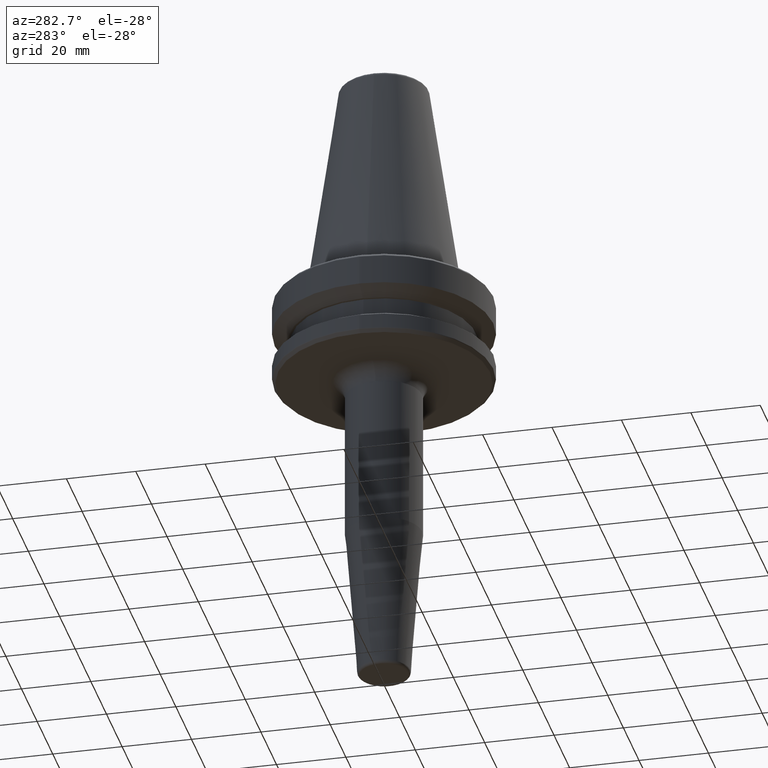
[diagram: clean part render]
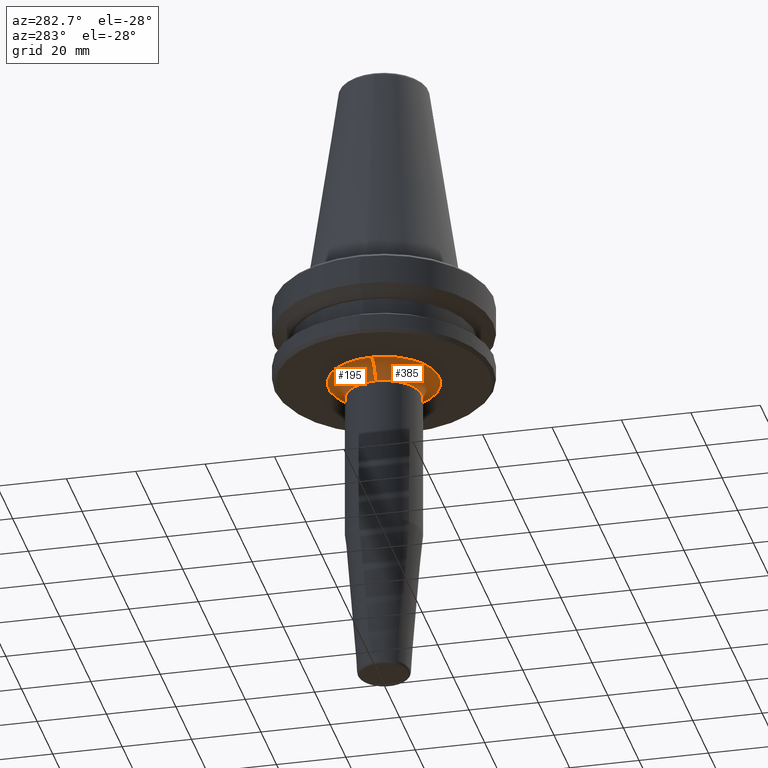
[diagram: same view with one multi-face feature highlighted, each face labeled with its STEP entity id]
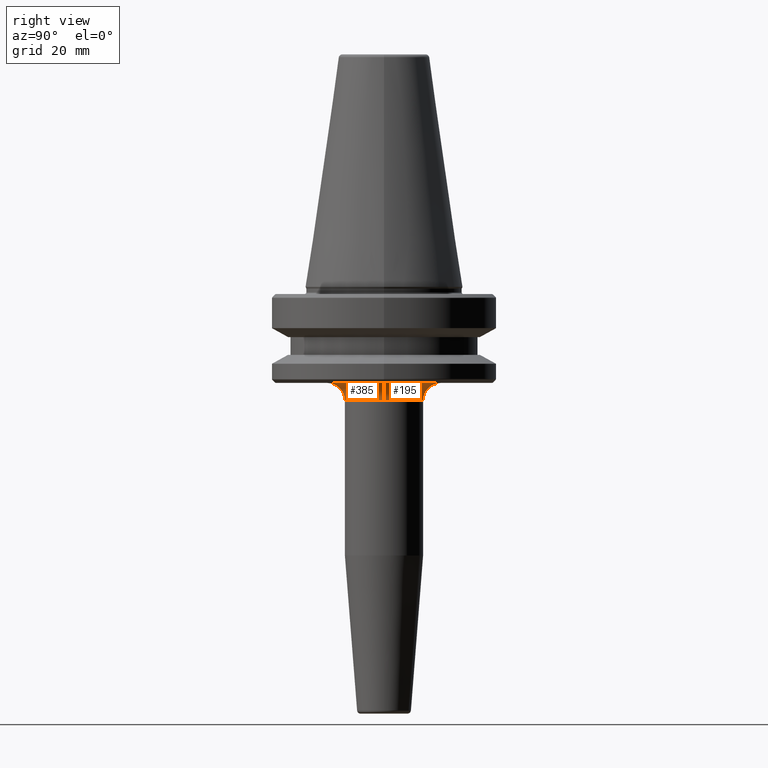
[diagram: same view with one multi-face feature highlighted, each face labeled with its STEP entity id]
A machine part, auxiliary view. The highlighted faces form ONE feature: a constant-radius fillet chain: 2 tangent blend faces with common blend radius 5 mm. The faces share edges in the B-rep.
A second angle (right view) of the same feature is appended — it is thin or edge-on in the first view.
Their STEP definitions:
[1] entity #195 (Torus):
#37 = CARTESIAN_POINT ( 'NONE',  ( -16.00000000000001100, 2.765331481945631400E-016, -27.00000000000000400 ) ) ;
#41 = EDGE_CURVE ( 'NONE', #944, #366, #892, .T. ) ;
#62 = DIRECTION ( 'NONE',  ( -1.000000000000000000, 0.0000000000000000000, 0.0000000000000000000 ) ) ;
#67 = VERTEX_POINT ( 'NONE', #913 ) ;
#112 = DIRECTION ( 'NONE',  ( -1.000000000000000000, 0.0000000000000000000, 0.0000000000000000000 ) ) ;
#113 = CARTESIAN_POINT ( 'NONE',  ( 0.0000000000000000000, 2.765331481945631400E-016, -32.00000000000000000 ) ) ;
#146 = CIRCLE ( 'NONE', #1062, 11.00000000000001100 ) ;
#152 = ORIENTED_EDGE ( 'NONE', *, *, #446, .F. ) ;
#159 = ORIENTED_EDGE ( 'NONE', *, *, #41, .T. ) ;
#179 = CARTESIAN_POINT ( 'NONE',  ( 0.0000000000000000000, 11.00000000000001100, -32.00000000000000000 ) ) ;
#195 = ADVANCED_FACE ( 'NONE', ( #471 ), #961, .F. ) ;
#222 = EDGE_LOOP ( 'NONE', ( #286, #403, #688, #159, #152 ) ) ;
#248 = EDGE_CURVE ( 'NONE', #944, #1156, #146, .T. ) ;
#282 = DIRECTION ( 'NONE',  ( -1.000000000000000000, 0.0000000000000000000, 0.0000000000000000000 ) ) ;
#286 = ORIENTED_EDGE ( 'NONE', *, *, #603, .F. ) ;
#314 = DIRECTION ( 'NONE',  ( -1.000000000000000000, -1.224646799147353000E-016, 0.0000000000000000000 ) ) ;
#320 = DIRECTION ( 'NONE',  ( 0.0000000000000000000, 0.0000000000000000000, -1.000000000000000000 ) ) ;
#366 = VERTEX_POINT ( 'NONE', #37 ) ;
#400 = AXIS2_PLACEMENT_3D ( 'NONE', #1238, #656, #62 ) ;
#402 = DIRECTION ( 'NONE',  ( 0.0000000000000000000, 0.0000000000000000000, -1.000000000000000000 ) ) ;
#403 = ORIENTED_EDGE ( 'NONE', *, *, #1060, .F. ) ;
#415 = CARTESIAN_POINT ( 'NONE',  ( -16.00000000000001100, 2.765331481945631400E-016, -32.00000000000000000 ) ) ;
#446 = EDGE_CURVE ( 'NONE', #67, #366, #824, .T. ) ;
#454 = CARTESIAN_POINT ( 'NONE',  ( -11.00000000000001100, 2.765331481945631400E-016, -32.00000000000000000 ) ) ;
#460 = DIRECTION ( 'NONE',  ( -0.0000000000000000000, -0.0000000000000000000, 1.000000000000000000 ) ) ;
#471 = FACE_OUTER_BOUND ( 'NONE', #222, .T. ) ;
#603 = EDGE_CURVE ( 'NONE', #1158, #67, #982, .T. ) ;
#644 = DIRECTION ( 'NONE',  ( -1.224646799147353200E-016, 1.000000000000000000, 0.0000000000000000000 ) ) ;
#656 = DIRECTION ( 'NONE',  ( 0.0000000000000000000, 0.0000000000000000000, -1.000000000000000000 ) ) ;
#688 = ORIENTED_EDGE ( 'NONE', *, *, #248, .F. ) ;
#712 = AXIS2_PLACEMENT_3D ( 'NONE', #1065, #644, #314 ) ;
#730 = DIRECTION ( 'NONE',  ( -1.000000000000000000, 0.0000000000000000000, 0.0000000000000000000 ) ) ;
#787 = AXIS2_PLACEMENT_3D ( 'NONE', #415, #1001, #320 ) ;
#790 = AXIS2_PLACEMENT_3D ( 'NONE', #968, #894, #282 ) ;
#824 = CIRCLE ( 'NONE', #997, 16.00000000000001100 ) ;
#851 = CIRCLE ( 'NONE', #400, 11.00000000000001100 ) ;
#892 = CIRCLE ( 'NONE', #787, 4.999999999999997300 ) ;
#894 = DIRECTION ( 'NONE',  ( 0.0000000000000000000, 0.0000000000000000000, -1.000000000000000000 ) ) ;
#913 = CARTESIAN_POINT ( 'NONE',  ( 16.00000000000001100, 2.235968026830329600E-015, -27.00000000000000400 ) ) ;
#944 = VERTEX_POINT ( 'NONE', #454 ) ;
#961 = TOROIDAL_SURFACE ( 'NONE', #790, 16.00000000000001100, 5.000000000000000000 ) ;
#968 = CARTESIAN_POINT ( 'NONE',  ( 0.0000000000000000000, 2.765331481945631400E-016, -32.00000000000000000 ) ) ;
#982 = CIRCLE ( 'NONE', #712, 5.000000000000000900 ) ;
#997 = AXIS2_PLACEMENT_3D ( 'NONE', #1109, #460, #730 ) ;
#1001 = DIRECTION ( 'NONE',  ( -0.0000000000000000000, -1.000000000000000000, -0.0000000000000000000 ) ) ;
#1055 = CARTESIAN_POINT ( 'NONE',  ( 11.00000000000001100, 1.929806327043491700E-015, -32.00000000000000000 ) ) ;
#1060 = EDGE_CURVE ( 'NONE', #1156, #1158, #851, .T. ) ;
#1062 = AXIS2_PLACEMENT_3D ( 'NONE', #113, #402, #112 ) ;
#1065 = CARTESIAN_POINT ( 'NONE',  ( 16.00000000000001100, 2.235968026830329600E-015, -32.00000000000000000 ) ) ;
#1109 = CARTESIAN_POINT ( 'NONE',  ( 0.0000000000000000000, 2.765331481945631400E-016, -27.00000000000000400 ) ) ;
#1156 = VERTEX_POINT ( 'NONE', #179 ) ;
#1158 = VERTEX_POINT ( 'NONE', #1055 ) ;
#1238 = CARTESIAN_POINT ( 'NONE',  ( 0.0000000000000000000, 2.765331481945631400E-016, -32.00000000000000000 ) ) ;
[2] entity #385 (Torus):
#21 = CIRCLE ( 'NONE', #587, 11.00000000000001100 ) ;
#23 = CARTESIAN_POINT ( 'NONE',  ( 0.0000000000000000000, 2.765331481945631400E-016, -32.00000000000000000 ) ) ;
#37 = CARTESIAN_POINT ( 'NONE',  ( -16.00000000000001100, 2.765331481945631400E-016, -27.00000000000000400 ) ) ;
#41 = EDGE_CURVE ( 'NONE', #944, #366, #892, .T. ) ;
#67 = VERTEX_POINT ( 'NONE', #913 ) ;
#68 = CARTESIAN_POINT ( 'NONE',  ( 1.347111479062090400E-015, -11.00000000000001100, -32.00000000000000000 ) ) ;
#71 = DIRECTION ( 'NONE',  ( 0.0000000000000000000, 0.0000000000000000000, -1.000000000000000000 ) ) ;
#105 = DIRECTION ( 'NONE',  ( -0.0000000000000000000, -0.0000000000000000000, 1.000000000000000000 ) ) ;
#231 = FACE_OUTER_BOUND ( 'NONE', #616, .T. ) ;
#242 = EDGE_CURVE ( 'NONE', #366, #67, #932, .T. ) ;
#310 = ORIENTED_EDGE ( 'NONE', *, *, #603, .T. ) ;
#314 = DIRECTION ( 'NONE',  ( -1.000000000000000000, -1.224646799147353000E-016, 0.0000000000000000000 ) ) ;
#320 = DIRECTION ( 'NONE',  ( 0.0000000000000000000, 0.0000000000000000000, -1.000000000000000000 ) ) ;
#327 = DIRECTION ( 'NONE',  ( -1.000000000000000000, 0.0000000000000000000, 0.0000000000000000000 ) ) ;
#366 = VERTEX_POINT ( 'NONE', #37 ) ;
#385 = ADVANCED_FACE ( 'NONE', ( #231 ), #1128, .F. ) ;
#386 = DIRECTION ( 'NONE',  ( -1.000000000000000000, 0.0000000000000000000, 0.0000000000000000000 ) ) ;
#401 = ORIENTED_EDGE ( 'NONE', *, *, #41, .F. ) ;
#415 = CARTESIAN_POINT ( 'NONE',  ( -16.00000000000001100, 2.765331481945631400E-016, -32.00000000000000000 ) ) ;
#418 = AXIS2_PLACEMENT_3D ( 'NONE', #670, #105, #1174 ) ;
#454 = CARTESIAN_POINT ( 'NONE',  ( -11.00000000000001100, 2.765331481945631400E-016, -32.00000000000000000 ) ) ;
#469 = AXIS2_PLACEMENT_3D ( 'NONE', #871, #666, #327 ) ;
#486 = ORIENTED_EDGE ( 'NONE', *, *, #242, .F. ) ;
#587 = AXIS2_PLACEMENT_3D ( 'NONE', #659, #71, #763 ) ;
#603 = EDGE_CURVE ( 'NONE', #1158, #67, #982, .T. ) ;
#616 = EDGE_LOOP ( 'NONE', ( #1032, #310, #486, #401, #1137 ) ) ;
#624 = EDGE_CURVE ( 'NONE', #858, #944, #725, .T. ) ;
#644 = DIRECTION ( 'NONE',  ( -1.224646799147353200E-016, 1.000000000000000000, 0.0000000000000000000 ) ) ;
#659 = CARTESIAN_POINT ( 'NONE',  ( 0.0000000000000000000, 2.765331481945631400E-016, -32.00000000000000000 ) ) ;
#666 = DIRECTION ( 'NONE',  ( 0.0000000000000000000, 0.0000000000000000000, -1.000000000000000000 ) ) ;
#670 = CARTESIAN_POINT ( 'NONE',  ( 0.0000000000000000000, 2.765331481945631400E-016, -27.00000000000000400 ) ) ;
#712 = AXIS2_PLACEMENT_3D ( 'NONE', #1065, #644, #314 ) ;
#725 = CIRCLE ( 'NONE', #845, 11.00000000000001100 ) ;
#763 = DIRECTION ( 'NONE',  ( -1.000000000000000000, 0.0000000000000000000, 0.0000000000000000000 ) ) ;
#787 = AXIS2_PLACEMENT_3D ( 'NONE', #415, #1001, #320 ) ;
#814 = DIRECTION ( 'NONE',  ( 0.0000000000000000000, 0.0000000000000000000, -1.000000000000000000 ) ) ;
#845 = AXIS2_PLACEMENT_3D ( 'NONE', #23, #814, #386 ) ;
#858 = VERTEX_POINT ( 'NONE', #68 ) ;
#871 = CARTESIAN_POINT ( 'NONE',  ( 0.0000000000000000000, 2.765331481945631400E-016, -32.00000000000000000 ) ) ;
#892 = CIRCLE ( 'NONE', #787, 4.999999999999997300 ) ;
#913 = CARTESIAN_POINT ( 'NONE',  ( 16.00000000000001100, 2.235968026830329600E-015, -27.00000000000000400 ) ) ;
#932 = CIRCLE ( 'NONE', #418, 16.00000000000001100 ) ;
#944 = VERTEX_POINT ( 'NONE', #454 ) ;
#982 = CIRCLE ( 'NONE', #712, 5.000000000000000900 ) ;
#1001 = DIRECTION ( 'NONE',  ( -0.0000000000000000000, -1.000000000000000000, -0.0000000000000000000 ) ) ;
#1032 = ORIENTED_EDGE ( 'NONE', *, *, #1079, .F. ) ;
#1055 = CARTESIAN_POINT ( 'NONE',  ( 11.00000000000001100, 1.929806327043491700E-015, -32.00000000000000000 ) ) ;
#1065 = CARTESIAN_POINT ( 'NONE',  ( 16.00000000000001100, 2.235968026830329600E-015, -32.00000000000000000 ) ) ;
#1079 = EDGE_CURVE ( 'NONE', #1158, #858, #21, .T. ) ;
#1128 = TOROIDAL_SURFACE ( 'NONE', #469, 16.00000000000001100, 5.000000000000000000 ) ;
#1137 = ORIENTED_EDGE ( 'NONE', *, *, #624, .F. ) ;
#1158 = VERTEX_POINT ( 'NONE', #1055 ) ;
#1174 = DIRECTION ( 'NONE',  ( -1.000000000000000000, 0.0000000000000000000, 0.0000000000000000000 ) ) ;